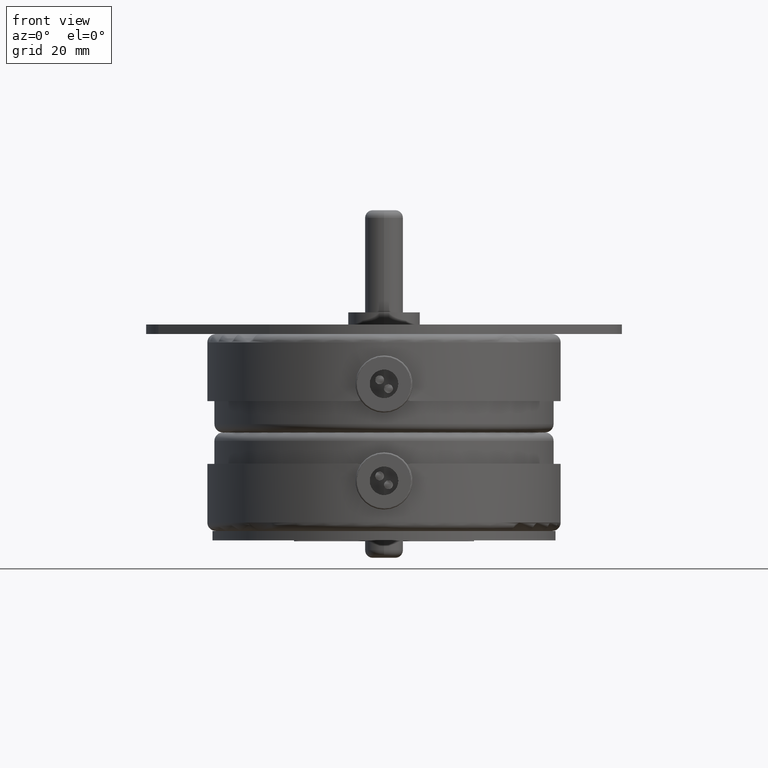
[diagram: clean part render]
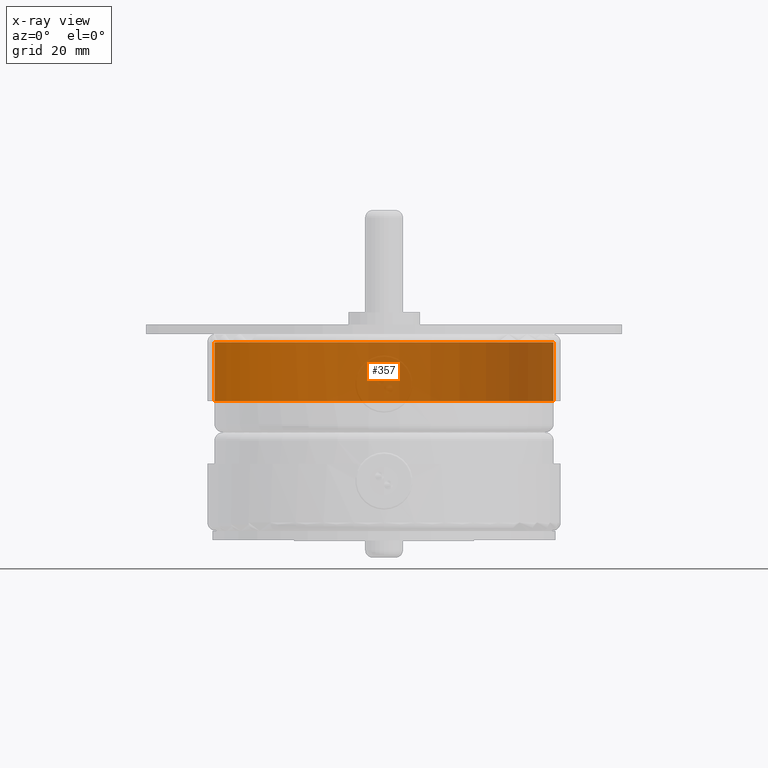
[diagram: x-ray — body ghosted, one internal face saturated and labeled with its STEP entity id]
A machine part, front view, then the same camera in x-ray: the body is ghosted and one INTERNAL B-rep face — a face not visible from any outside direction — is saturated and labeled: STEP entity #357.
In plain terms, the highlighted cylindrical surface (partial cylindrical patch) has radius 28.2194 mm, axis along (0, 0, -1).
Its self-contained STEP definition (entity closure, byte-faithful):
#11=CARTESIAN_POINT('',(-5.5E-2,0.E0,0.E0));
#12=DIRECTION('',(1.E0,0.E0,0.E0));
#13=DIRECTION('',(0.E0,0.E0,-1.E0));
#14=AXIS2_PLACEMENT_3D('',#11,#12,#13);
#21=DIRECTION('',(1.E0,0.E0,0.E0));
#22=VECTOR('',#21,3.85E-1);
#23=CARTESIAN_POINT('',(-4.4E-1,0.E0,1.111E0));
#24=LINE('',#23,#22);
#39=DIRECTION('',(1.E0,0.E0,0.E0));
#40=VECTOR('',#39,3.85E-1);
#41=CARTESIAN_POINT('',(-4.4E-1,0.E0,-1.111E0));
#42=LINE('',#41,#40);
#128=CARTESIAN_POINT('',(-4.4E-1,0.E0,0.E0));
#129=DIRECTION('',(-1.E0,0.E0,0.E0));
#130=DIRECTION('',(0.E0,0.E0,1.E0));
#131=AXIS2_PLACEMENT_3D('',#128,#129,#130);
#259=CARTESIAN_POINT('',(-5.5E-2,0.E0,-1.111E0));
#261=VERTEX_POINT('',#259);
#265=CARTESIAN_POINT('',(-5.5E-2,0.E0,1.111E0));
#266=VERTEX_POINT('',#265);
#267=CARTESIAN_POINT('',(-4.4E-1,0.E0,-1.111E0));
#268=VERTEX_POINT('',#267);
#269=CARTESIAN_POINT('',(-4.4E-1,0.E0,1.111E0));
#270=VERTEX_POINT('',#269);
#343=CARTESIAN_POINT('',(2.2E-2,0.E0,0.E0));
#344=DIRECTION('',(-1.E0,0.E0,0.E0));
#345=DIRECTION('',(0.E0,0.E0,-1.E0));
#346=AXIS2_PLACEMENT_3D('',#343,#344,#345);
#347=CYLINDRICAL_SURFACE('',#346,1.111E0);
#349=ORIENTED_EDGE('',*,*,#348,.F.);
#351=ORIENTED_EDGE('',*,*,#350,.F.);
#353=ORIENTED_EDGE('',*,*,#352,.T.);
#354=ORIENTED_EDGE('',*,*,#335,.F.);
#355=EDGE_LOOP('',(#349,#351,#353,#354));
#356=FACE_OUTER_BOUND('',#355,.F.);
#357=ADVANCED_FACE('',(#356),#347,.F.);
#15=CIRCLE('',#14,1.111E0);
#132=CIRCLE('',#131,1.111E0);
#335=EDGE_CURVE('',#261,#266,#15,.T.);
#348=EDGE_CURVE('',#268,#261,#42,.T.);
#350=EDGE_CURVE('',#270,#268,#132,.T.);
#352=EDGE_CURVE('',#270,#266,#24,.T.);